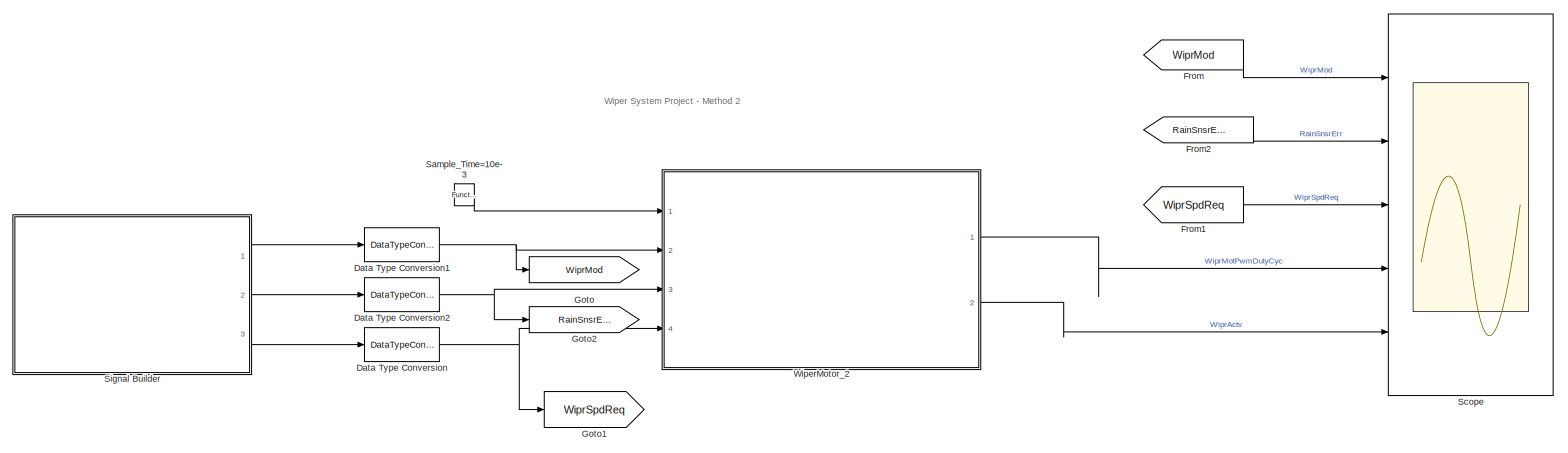
[diagram: root canvas - part 1/1, most of the canvas]
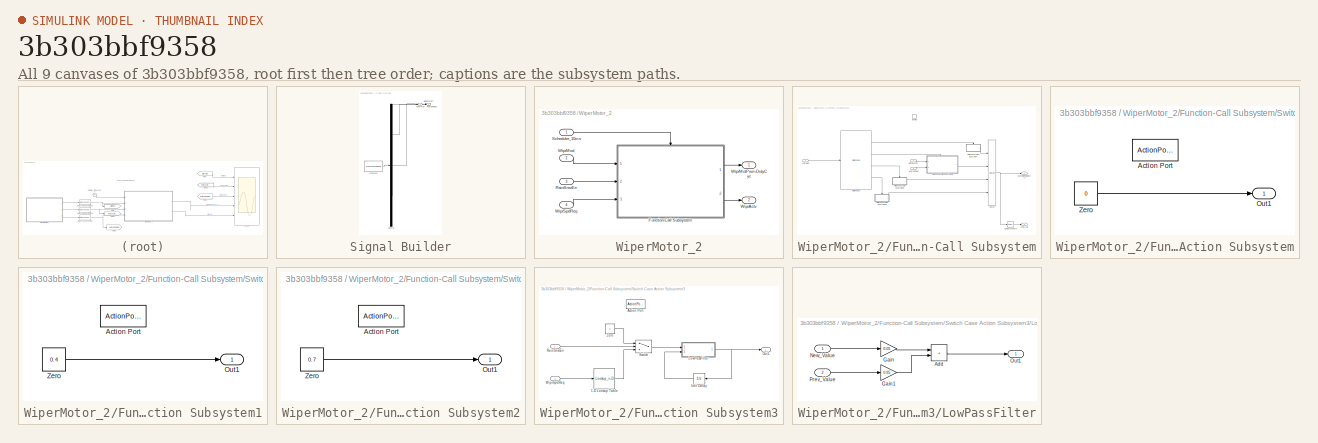
[diagram: thumbnail index - all 9 canvases of the model, root first then tree order]
MODEL slx_3b303bbf9358
KIND model
CONFIG AbsTol = auto
CONFIG EnableMultiTasking = off
CONFIG FixedStep = 0.01
CONFIG MaxStep = auto
CONFIG MinStep = auto
CONFIG RelTol = 1e-3
CONFIG SampleTimeConstraint = Unconstrained
CONFIG SolverName = FixedStepDiscrete
CONFIG StartTime = 0.0
CONFIG StopTime = 10.0
WORKSPACE source: mxarray member
WORKSPACE Table_x_data: Simulink.Parameter (value not decoded)
WORKSPACE Table_y_data: Simulink.Parameter (value not decoded)
BLOCK [DataTypeConversion] Data Type Conversion
  RndMeth = Floor
  SaturateOnIntegerOverflow = off
BLOCK [DataTypeConversion] Data Type Conversion1
  RndMeth = Floor
  SaturateOnIntegerOverflow = off
BLOCK [DataTypeConversion] Data Type Conversion2
  RndMeth = Floor
  SaturateOnIntegerOverflow = off
BLOCK [From] From
  GotoTag = WiprMod
BLOCK [From] From1
  GotoTag = WiprSpdReq
BLOCK [From] From2
  GotoTag = RainSnsrErr
BLOCK [Goto] Goto
  GotoTag = WiprMod
BLOCK [Goto] Goto1
  GotoTag = WiprSpdReq
BLOCK [Goto] Goto2
  GotoTag = RainSnsrErr
BLOCK [Reference] Sample_Time=10e-3  REF=simulink/Ports &
Subsystems/Function-Call
Generator
  Ports = [0, 1]
  SourceBlock = simulink/Ports &\nSubsystems/Function-Call\nGenerator
  SourceProductBaseCode = SL
  SourceType = Function-Call Generator
BLOCK [Scope] Scope
  Floating = off
  NumInputPorts = 5
  Ports = [5]
  ScopeSpecificationString = Simulink.scopes.TimeScopeBlockCfg('CurrentConfiguration', extmgr.ConfigurationSet(extmgr.Configuration('Core','General UI',true),extmgr.Configuration('Core','Source UI',true),extmgr.Configuration('Sources','WiredSimulink',true),extmgr.Configuration('Visuals','Time Domain',true,'SerializedDisplays',{struct('MinYLimReal','-0.375','MaxYLimReal','3.375','YLabelReal','','MinYLimMag','0.00000','MaxYLimM...<+6156ch>
BLOCK [SubSystem] Signal Builder
  ClipboardFcn = sigbuilder_block('clipboard');
  CloseFcn = sigbuilder_block('close');
  ContinueFcn = sigbuilder_block('continue');
  CopyFcn = sigbuilder_block('copy');
  DeleteFcn = sigbuilder_block('delete');
  LoadFcn = sigbuilder_block('load');
  MaskHideContents = on
  ModelCloseFcn = sigbuilder_block('modelClose');
  NameChangeFcn = sigbuilder_block('namechange');
  OpenFcn = sigbuilder_block('open',[240 92.5 550.5 362.5 ]);
  PauseFcn = sigbuilder_block('pause');
  Ports = [0, 3]
  PreSaveFcn = sigbuilder_block('preSave');
  RequestExecContextInheritance = off
  StartFcn = sigbuilder_block('start');
  StopFcn = sigbuilder_block('stop');
  Tag = STV Subsys
BLOCK [Demux] Signal Builder/Demux
  DisplayOption = none
  Outputs = 3
  Ports = [1, 3]
  Tag = STV Demux
BLOCK [FromWorkspace] Signal Builder/FromWs
  OutputAfterFinalValue = Holding final value
  SampleTime = 1
  Tag = STV FromWs
  VariableName = tuvar
BLOCK [Outport] Signal Builder/RainSnsrErr
  Port = 2
  Tag = STV Outport
BLOCK [Outport] Signal Builder/WiprMod
  Tag = STV Outport
BLOCK [Outport] Signal Builder/WiprSpdReq
  Port = 3
  Tag = STV Outport
BLOCK [SubSystem] WiperMotor_2
  Ports = [4, 2]
  RequestExecContextInheritance = off
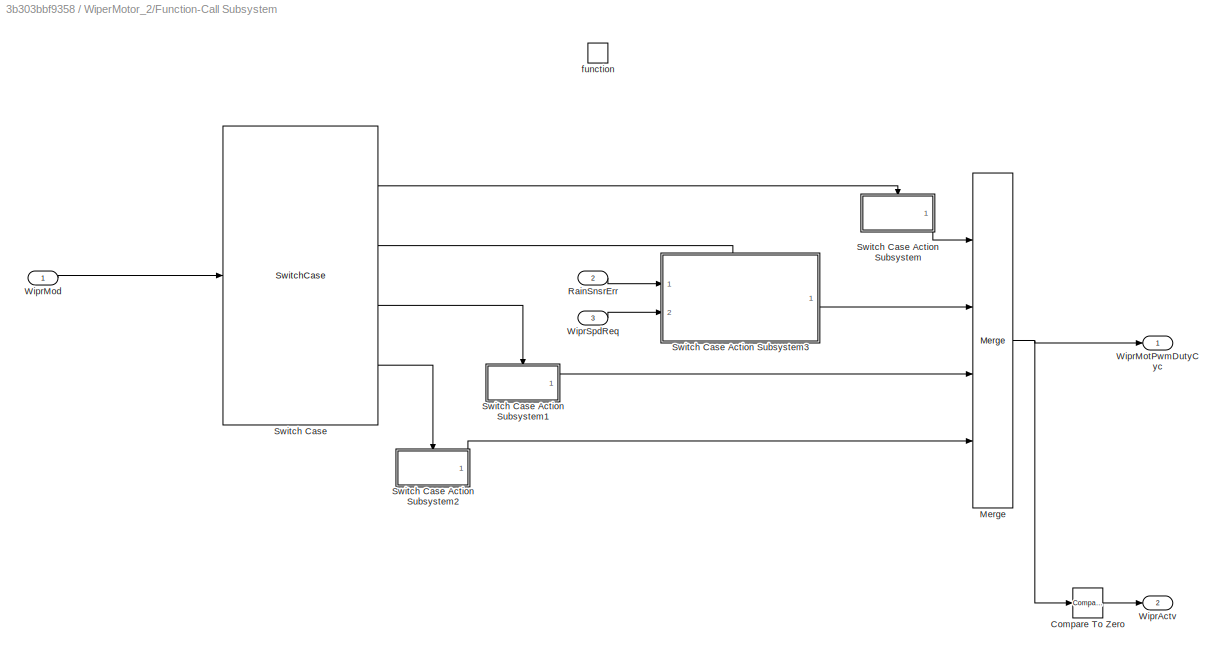
BLOCK [SubSystem] WiperMotor_2/Function-Call Subsystem
  Ports = [3, 2, 0, 1]
  RequestExecContextInheritance = off
  TreatAsAtomicUnit = on
BLOCK [Reference] WiperMotor_2/Function-Call Subsystem/Compare To Zero  REF=simulink/Logic and Bit
Operations/Compare
To Zero
  Ports = [1, 1]
  SourceBlock = simulink/Logic and Bit\nOperations/Compare\nTo Zero
  SourceProductBaseCode = SL
  SourceType = Compare To Zero
BLOCK [Merge] WiperMotor_2/Function-Call Subsystem/Merge
  Inputs = 4
  Ports = [4, 1]
BLOCK [Inport] WiperMotor_2/Function-Call Subsystem/RainSnsrErr
  Port = 2
BLOCK [SwitchCase] WiperMotor_2/Function-Call Subsystem/Switch Case
  CaseConditions = {0,1,2,3}
  Ports = [1, 4]
  ShowDefaultCase = off
BLOCK [SubSystem] WiperMotor_2/Function-Call Subsystem/Switch Case Action Subsystem
  Ports = [0, 1, 0, 0, 0, 0, 0, 1]
  RequestExecContextInheritance = off
  TreatAsAtomicUnit = on
BLOCK [ActionPort] WiperMotor_2/Function-Call Subsystem/Switch Case Action Subsystem/Action Port
  ActionPortLabel = case [ 0 ]:
BLOCK [Outport] WiperMotor_2/Function-Call Subsystem/Switch Case Action Subsystem/Out1
BLOCK [Constant] WiperMotor_2/Function-Call Subsystem/Switch Case Action Subsystem/Zero
  OutDataTypeStr = Inherit: Inherit via back propagation
  Value = 0
BLOCK [SubSystem] WiperMotor_2/Function-Call Subsystem/Switch Case Action Subsystem1
  Ports = [0, 1, 0, 0, 0, 0, 0, 1]
  RequestExecContextInheritance = off
  TreatAsAtomicUnit = on
BLOCK [ActionPort] WiperMotor_2/Function-Call Subsystem/Switch Case Action Subsystem1/Action Port
  ActionPortLabel = case [ 2 ]:
BLOCK [Outport] WiperMotor_2/Function-Call Subsystem/Switch Case Action Subsystem1/Out1
BLOCK [Constant] WiperMotor_2/Function-Call Subsystem/Switch Case Action Subsystem1/Zero
  OutDataTypeStr = single
  Value = 0.4
BLOCK [SubSystem] WiperMotor_2/Function-Call Subsystem/Switch Case Action Subsystem2
  Ports = [0, 1, 0, 0, 0, 0, 0, 1]
  RequestExecContextInheritance = off
  TreatAsAtomicUnit = on
BLOCK [ActionPort] WiperMotor_2/Function-Call Subsystem/Switch Case Action Subsystem2/Action Port
  ActionPortLabel = case [ 3 ]:
BLOCK [Outport] WiperMotor_2/Function-Call Subsystem/Switch Case Action Subsystem2/Out1
BLOCK [Constant] WiperMotor_2/Function-Call Subsystem/Switch Case Action Subsystem2/Zero
  OutDataTypeStr = Inherit: Inherit via back propagation
  Value = 0.7
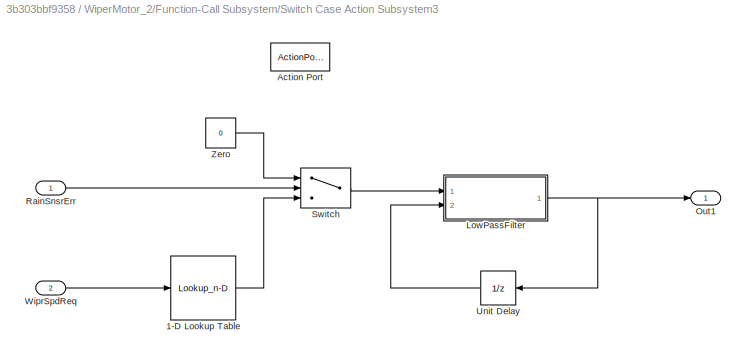
BLOCK [SubSystem] WiperMotor_2/Function-Call Subsystem/Switch Case Action Subsystem3
  Ports = [2, 1, 0, 0, 0, 0, 0, 1]
  RequestExecContextInheritance = off
  TreatAsAtomicUnit = on
BLOCK [Lookup_n-D] WiperMotor_2/Function-Call Subsystem/Switch Case Action Subsystem3/1-D Lookup Table
  BreakpointsForDimension1 = Table_x_data
  ExtrapMethod = Clip
  InputPortMap = u0
  InternalRulePriority = Speed
  NumberOfTableDimensions = 1
  OutDataTypeStr = single
  Ports = [1, 1]
  RndMeth = Simplest
  Table = Table_y_data
  TableDataTypeStr = single
BLOCK [ActionPort] WiperMotor_2/Function-Call Subsystem/Switch Case Action Subsystem3/Action Port
  ActionPortLabel = case [ 1 ]:
BLOCK [SubSystem] WiperMotor_2/Function-Call Subsystem/Switch Case Action Subsystem3/LowPassFilter
  Ports = [2, 1]
  RequestExecContextInheritance = off
BLOCK [Sum] WiperMotor_2/Function-Call Subsystem/Switch Case Action Subsystem3/LowPassFilter/Add
  IconShape = rectangular
  Ports = [2, 1]
BLOCK [Gain] WiperMotor_2/Function-Call Subsystem/Switch Case Action Subsystem3/LowPassFilter/Gain
  Gain = 0.05
BLOCK [Gain] WiperMotor_2/Function-Call Subsystem/Switch Case Action Subsystem3/LowPassFilter/Gain1
  Gain = 0.95
BLOCK [Inport] WiperMotor_2/Function-Call Subsystem/Switch Case Action Subsystem3/LowPassFilter/New_Value
BLOCK [Outport] WiperMotor_2/Function-Call Subsystem/Switch Case Action Subsystem3/LowPassFilter/Out1
BLOCK [Inport] WiperMotor_2/Function-Call Subsystem/Switch Case Action Subsystem3/LowPassFilter/Prev_Value
  Port = 2
BLOCK [Outport] WiperMotor_2/Function-Call Subsystem/Switch Case Action Subsystem3/Out1
BLOCK [Inport] WiperMotor_2/Function-Call Subsystem/Switch Case Action Subsystem3/RainSnsrErr
BLOCK [Switch] WiperMotor_2/Function-Call Subsystem/Switch Case Action Subsystem3/Switch
  Criteria = u2 > Threshold
  InputSameDT = off
  SaturateOnIntegerOverflow = off
BLOCK [UnitDelay] WiperMotor_2/Function-Call Subsystem/Switch Case Action Subsystem3/Unit Delay
  HasFrameUpgradeWarning = on
  NameLocation = top
  SampleTime = -1
BLOCK [Inport] WiperMotor_2/Function-Call Subsystem/Switch Case Action Subsystem3/WiprSpdReq
  Port = 2
BLOCK [Constant] WiperMotor_2/Function-Call Subsystem/Switch Case Action Subsystem3/Zero
  OutDataTypeStr = Inherit: Inherit via back propagation
  Value = 0
BLOCK [Outport] WiperMotor_2/Function-Call Subsystem/WiprActv
  Port = 2
BLOCK [Inport] WiperMotor_2/Function-Call Subsystem/WiprMod
BLOCK [Outport] WiperMotor_2/Function-Call Subsystem/WiprMotPwmDutyCyc
BLOCK [Inport] WiperMotor_2/Function-Call Subsystem/WiprSpdReq
  Port = 3
BLOCK [TriggerPort] WiperMotor_2/Function-Call Subsystem/function
  Ports = []
  StatesWhenEnabling = held
  TriggerType = function-call
  VariantControl = (inherit)
BLOCK [Inport] WiperMotor_2/RainSnsrErr
  OutDataTypeStr = boolean
  OutMax = 1
  OutMin = 0
  Port = 3
BLOCK [Inport] WiperMotor_2/Scheduler_10ms
BLOCK [Outport] WiperMotor_2/WiprActv
  OutDataTypeStr = boolean
  Port = 2
BLOCK [Inport] WiperMotor_2/WiprMod
  OutDataTypeStr = uint8
  OutMax = 3
  OutMin = 0
  Port = 2
BLOCK [Outport] WiperMotor_2/WiprMotPwmDutyCyc
  LockScale = on
  OutDataTypeStr = single
  OutMax = 1
  OutMin = 0
BLOCK [Inport] WiperMotor_2/WiprSpdReq
  OutDataTypeStr = uint8
  OutMax = 7
  OutMin = 0
  Port = 4
ANNOTATION (root): Wiper System Project - Method 2
NET Data Type Conversion1:1 -> Goto:1, WiperMotor_2:2
NET Data Type Conversion2:1 -> Goto2:1, WiperMotor_2:3
NET Data Type Conversion:1 -> Goto1:1, WiperMotor_2:4
LINE From1:1 -> Scope:3
LINE From2:1 -> Scope:2
LINE From:1 -> Scope:1
LINE Sample_Time=10e-3:1 -> WiperMotor_2:1
LINE Signal Builder:1 -> Data Type Conversion1:1
LINE Signal Builder:2 -> Data Type Conversion2:1
LINE Signal Builder:3 -> Data Type Conversion:1
LINE WiperMotor_2/Function-Call Subsystem/Compare To Zero:1 -> WiperMotor_2/Function-Call Subsystem/WiprActv:1
NET WiperMotor_2/Function-Call Subsystem/Merge:1 -> WiperMotor_2/Function-Call Subsystem/Compare To Zero:1, WiperMotor_2/Function-Call Subsystem/WiprMotPwmDutyCyc:1
LINE WiperMotor_2/Function-Call Subsystem/RainSnsrErr:1 -> WiperMotor_2/Function-Call Subsystem/Switch Case Action Subsystem3:1
LINE WiperMotor_2/Function-Call Subsystem/Switch Case Action Subsystem/Zero:1 -> WiperMotor_2/Function-Call Subsystem/Switch Case Action Subsystem/Out1:1
LINE WiperMotor_2/Function-Call Subsystem/Switch Case Action Subsystem1/Zero:1 -> WiperMotor_2/Function-Call Subsystem/Switch Case Action Subsystem1/Out1:1
LINE WiperMotor_2/Function-Call Subsystem/Switch Case Action Subsystem1:1 -> WiperMotor_2/Function-Call Subsystem/Merge:3
LINE WiperMotor_2/Function-Call Subsystem/Switch Case Action Subsystem2/Zero:1 -> WiperMotor_2/Function-Call Subsystem/Switch Case Action Subsystem2/Out1:1
LINE WiperMotor_2/Function-Call Subsystem/Switch Case Action Subsystem2:1 -> WiperMotor_2/Function-Call Subsystem/Merge:4
LINE WiperMotor_2/Function-Call Subsystem/Switch Case Action Subsystem3/1-D Lookup Table:1 -> WiperMotor_2/Function-Call Subsystem/Switch Case Action Subsystem3/Switch:3
LINE WiperMotor_2/Function-Call Subsystem/Switch Case Action Subsystem3/LowPassFilter/Add:1 -> WiperMotor_2/Function-Call Subsystem/Switch Case Action Subsystem3/LowPassFilter/Out1:1
LINE WiperMotor_2/Function-Call Subsystem/Switch Case Action Subsystem3/LowPassFilter/Gain1:1 -> WiperMotor_2/Function-Call Subsystem/Switch Case Action Subsystem3/LowPassFilter/Add:2
LINE WiperMotor_2/Function-Call Subsystem/Switch Case Action Subsystem3/LowPassFilter/Gain:1 -> WiperMotor_2/Function-Call Subsystem/Switch Case Action Subsystem3/LowPassFilter/Add:1
LINE WiperMotor_2/Function-Call Subsystem/Switch Case Action Subsystem3/LowPassFilter/New_Value:1 -> WiperMotor_2/Function-Call Subsystem/Switch Case Action Subsystem3/LowPassFilter/Gain:1
LINE WiperMotor_2/Function-Call Subsystem/Switch Case Action Subsystem3/LowPassFilter/Prev_Value:1 -> WiperMotor_2/Function-Call Subsystem/Switch Case Action Subsystem3/LowPassFilter/Gain1:1
NET WiperMotor_2/Function-Call Subsystem/Switch Case Action Subsystem3/LowPassFilter:1 -> WiperMotor_2/Function-Call Subsystem/Switch Case Action Subsystem3/Out1:1, WiperMotor_2/Function-Call Subsystem/Switch Case Action Subsystem3/Unit Delay:1
LINE WiperMotor_2/Function-Call Subsystem/Switch Case Action Subsystem3/RainSnsrErr:1 -> WiperMotor_2/Function-Call Subsystem/Switch Case Action Subsystem3/Switch:2
LINE WiperMotor_2/Function-Call Subsystem/Switch Case Action Subsystem3/Switch:1 -> WiperMotor_2/Function-Call Subsystem/Switch Case Action Subsystem3/LowPassFilter:1
LINE WiperMotor_2/Function-Call Subsystem/Switch Case Action Subsystem3/Unit Delay:1 -> WiperMotor_2/Function-Call Subsystem/Switch Case Action Subsystem3/LowPassFilter:2
LINE WiperMotor_2/Function-Call Subsystem/Switch Case Action Subsystem3/WiprSpdReq:1 -> WiperMotor_2/Function-Call Subsystem/Switch Case Action Subsystem3/1-D Lookup Table:1
LINE WiperMotor_2/Function-Call Subsystem/Switch Case Action Subsystem3/Zero:1 -> WiperMotor_2/Function-Call Subsystem/Switch Case Action Subsystem3/Switch:1
LINE WiperMotor_2/Function-Call Subsystem/Switch Case Action Subsystem3:1 -> WiperMotor_2/Function-Call Subsystem/Merge:2
LINE WiperMotor_2/Function-Call Subsystem/Switch Case Action Subsystem:1 -> WiperMotor_2/Function-Call Subsystem/Merge:1
LINE WiperMotor_2/Function-Call Subsystem/Switch Case:1 -> WiperMotor_2/Function-Call Subsystem/Switch Case Action Subsystem:ifaction
LINE WiperMotor_2/Function-Call Subsystem/Switch Case:2 -> WiperMotor_2/Function-Call Subsystem/Switch Case Action Subsystem3:ifaction
LINE WiperMotor_2/Function-Call Subsystem/Switch Case:3 -> WiperMotor_2/Function-Call Subsystem/Switch Case Action Subsystem1:ifaction
LINE WiperMotor_2/Function-Call Subsystem/Switch Case:4 -> WiperMotor_2/Function-Call Subsystem/Switch Case Action Subsystem2:ifaction
LINE WiperMotor_2/Function-Call Subsystem/WiprMod:1 -> WiperMotor_2/Function-Call Subsystem/Switch Case:1
LINE WiperMotor_2/Function-Call Subsystem/WiprSpdReq:1 -> WiperMotor_2/Function-Call Subsystem/Switch Case Action Subsystem3:2
LINE WiperMotor_2/Function-Call Subsystem:1 -> WiperMotor_2/WiprMotPwmDutyCyc:1
LINE WiperMotor_2/Function-Call Subsystem:2 -> WiperMotor_2/WiprActv:1
LINE WiperMotor_2/RainSnsrErr:1 -> WiperMotor_2/Function-Call Subsystem:2
LINE WiperMotor_2/Scheduler_10ms:1 -> WiperMotor_2/Function-Call Subsystem:trigger
LINE WiperMotor_2/WiprMod:1 -> WiperMotor_2/Function-Call Subsystem:1
LINE WiperMotor_2/WiprSpdReq:1 -> WiperMotor_2/Function-Call Subsystem:3
LINE WiperMotor_2:1 -> Scope:4
LINE WiperMotor_2:2 -> Scope:5
note: NET lines group one-source signal fan-out (src -> all destinations, sorted); 1:1 wires keep LINE
